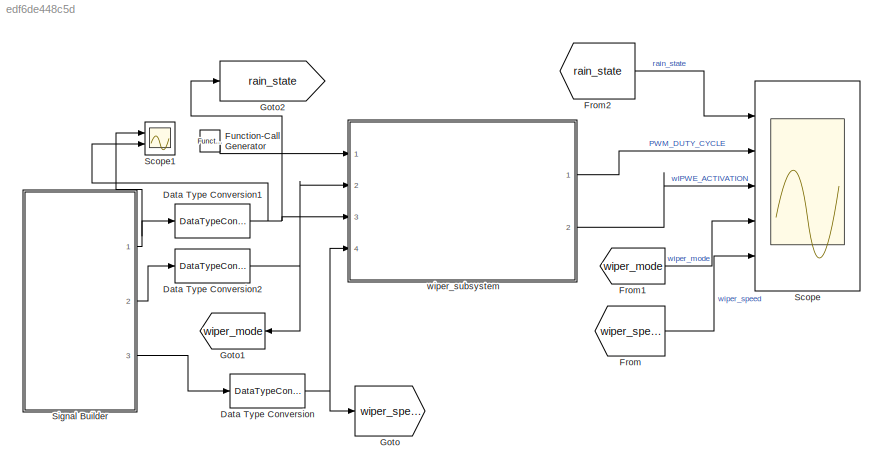
MODEL slx_edf6de448c5d
KIND model
CONFIG AbsTol = auto
CONFIG EnableMultiTasking = off
CONFIG FixedStep = 0.01
CONFIG MaxStep = auto
CONFIG MinStep = auto
CONFIG RelTol = 1e-3
CONFIG SampleTimeConstraint = Unconstrained
CONFIG SolverName = FixedStepDiscrete
CONFIG StartTime = 0.0
CONFIG StopTime = 20
BLOCK [DataTypeConversion] Data Type Conversion
  NameLocation = top
  RndMeth = Floor
  SaturateOnIntegerOverflow = off
BLOCK [DataTypeConversion] Data Type Conversion1
  RndMeth = Floor
  SaturateOnIntegerOverflow = off
BLOCK [DataTypeConversion] Data Type Conversion2
  RndMeth = Floor
  SaturateOnIntegerOverflow = off
BLOCK [From] From
  GotoTag = wiper_speed
BLOCK [From] From1
  GotoTag = wiper_mode
BLOCK [From] From2
  GotoTag = rain_state
BLOCK [Reference] Function-Call Generator  REF=simulink/Ports &
Subsystems/Function-Call
Generator
  Ports = [0, 1]
  SourceBlock = simulink/Ports &\nSubsystems/Function-Call\nGenerator
  SourceProductBaseCode = SL
  SourceType = Function-Call Generator
BLOCK [Goto] Goto
  GotoTag = wiper_speed
BLOCK [Goto] Goto1
  GotoTag = wiper_mode
  NameLocation = top
BLOCK [Goto] Goto2
  GotoTag = rain_state
BLOCK [Scope] Scope
  Floating = off
  NumInputPorts = 5
  Ports = [5]
  ScopeSpecificationString = Simulink.scopes.TimeScopeBlockCfg('CurrentConfiguration', extmgr.ConfigurationSet(extmgr.Configuration('Core','General UI',true),extmgr.Configuration('Core','Source UI',true),extmgr.Configuration('Sources','WiredSimulink',true),extmgr.Configuration('Visuals','Time Domain',true,'SerializedDisplays',{struct('MinYLimReal','-0.125','MaxYLimReal','1.125','YLabelReal','','MinYLimMag','0.00000','MaxYLimM...<+6185ch>
BLOCK [Scope] Scope1
  Floating = off
  NumInputPorts = 2
  Ports = [2]
  ScopeSpecificationString = Simulink.scopes.TimeScopeBlockCfg('CurrentConfiguration', extmgr.ConfigurationSet(extmgr.Configuration('Core','General UI',true),extmgr.Configuration('Core','Source UI',true),extmgr.Configuration('Sources','WiredSimulink',true,'DataLoggingVariableName','ScopeData1'),extmgr.Configuration('Visuals','Time Domain',true,'SerializedDisplays',{struct('MinYLimReal','-0.125','MaxYLimReal','1.125','YLabelRe...<+1441ch>
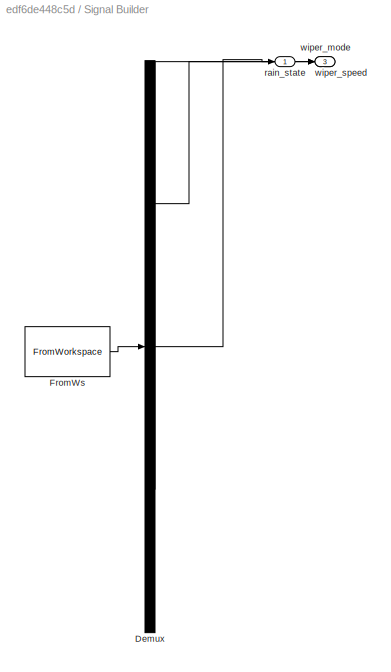
BLOCK [SubSystem] Signal Builder
  ClipboardFcn = sigbuilder_block('clipboard');
  CloseFcn = sigbuilder_block('close');
  ContinueFcn = sigbuilder_block('continue');
  CopyFcn = sigbuilder_block('copy');
  DeleteFcn = sigbuilder_block('delete');
  LoadFcn = sigbuilder_block('load',[5.4 30 1141.2 522.6 ]);
  MaskHideContents = on
  ModelCloseFcn = sigbuilder_block('modelClose');
  NameChangeFcn = sigbuilder_block('namechange');
  OpenFcn = sigbuilder_block('open',[5.4 30 1141.2 522.6 ]);
  PauseFcn = sigbuilder_block('pause');
  Ports = [0, 3]
  PreSaveFcn = sigbuilder_block('preSave');
  RequestExecContextInheritance = off
  StartFcn = sigbuilder_block('start');
  StopFcn = sigbuilder_block('stop');
  Tag = STV Subsys
BLOCK [Demux] Signal Builder/Demux
  DisplayOption = none
  Outputs = 3
  Ports = [1, 3]
  Tag = STV Demux
BLOCK [FromWorkspace] Signal Builder/FromWs
  Tag = STV FromWs
  VariableName = tuvar
BLOCK [Outport] Signal Builder/rain_state
  Tag = STV Outport
BLOCK [Outport] Signal Builder/wiper_mode
  Port = 2
  Tag = STV Outport
BLOCK [Outport] Signal Builder/wiper_speed
  Port = 3
  Tag = STV Outport
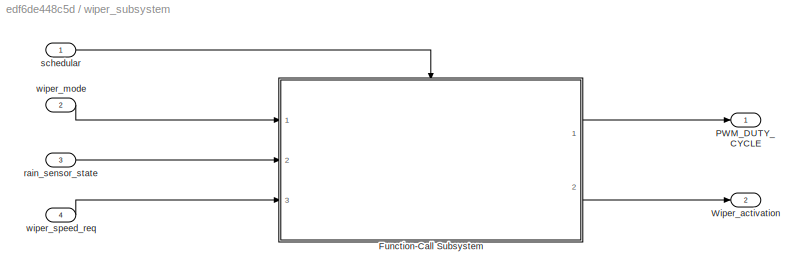
BLOCK [SubSystem] wiper_subsystem
  Ports = [4, 2]
  RequestExecContextInheritance = off
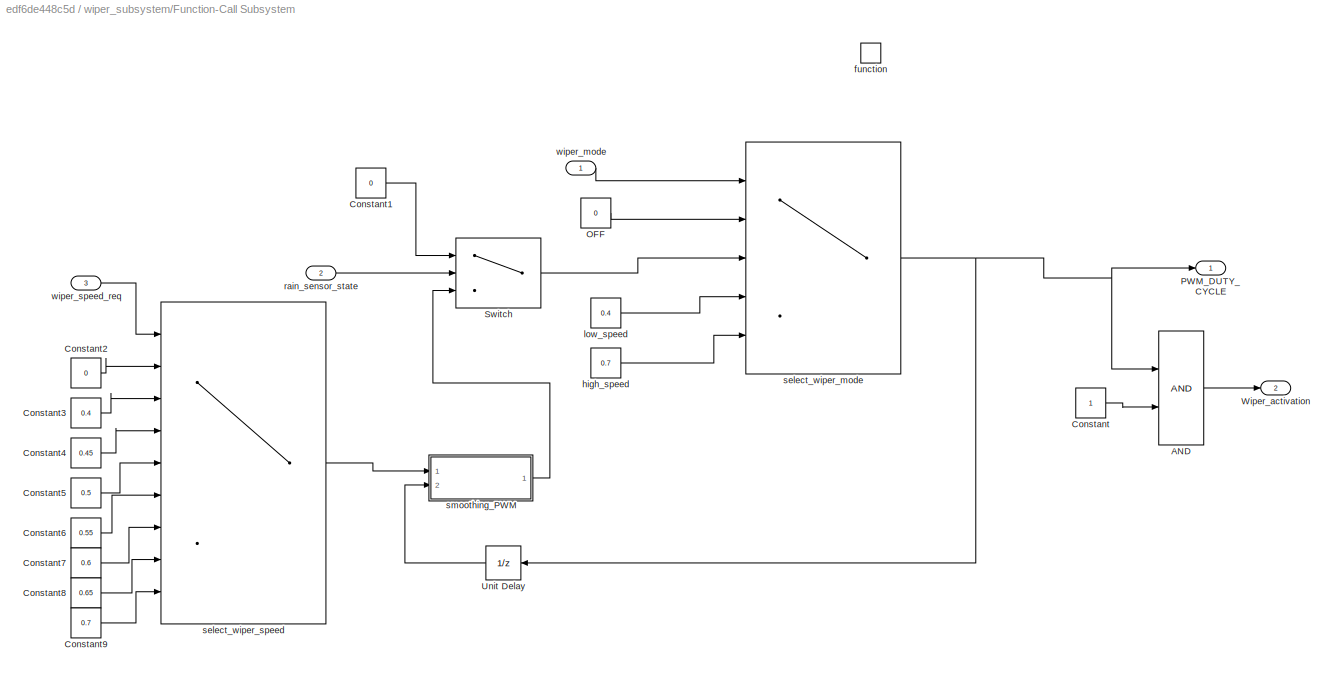
BLOCK [SubSystem] wiper_subsystem/Function-Call Subsystem
  Ports = [3, 2, 0, 1]
  RequestExecContextInheritance = off
  TreatAsAtomicUnit = on
BLOCK [Logic] wiper_subsystem/Function-Call Subsystem/AND
  AllPortsSameDT = off
  IconShape = distinctive
  OutDataTypeStr = boolean
  Ports = [2, 1]
BLOCK [Constant] wiper_subsystem/Function-Call Subsystem/Constant
BLOCK [Constant] wiper_subsystem/Function-Call Subsystem/Constant1
  Value = 0
BLOCK [Constant] wiper_subsystem/Function-Call Subsystem/Constant2
  Value = 0
BLOCK [Constant] wiper_subsystem/Function-Call Subsystem/Constant3
  Value = 0.4
BLOCK [Constant] wiper_subsystem/Function-Call Subsystem/Constant4
  Value = 0.45
BLOCK [Constant] wiper_subsystem/Function-Call Subsystem/Constant5
  Value = 0.5
BLOCK [Constant] wiper_subsystem/Function-Call Subsystem/Constant6
  Value = 0.55
BLOCK [Constant] wiper_subsystem/Function-Call Subsystem/Constant7
  Value = 0.6
BLOCK [Constant] wiper_subsystem/Function-Call Subsystem/Constant8
  Value = 0.65
BLOCK [Constant] wiper_subsystem/Function-Call Subsystem/Constant9
  Value = 0.7
BLOCK [Constant] wiper_subsystem/Function-Call Subsystem/OFF
  Value = 0
BLOCK [Outport] wiper_subsystem/Function-Call Subsystem/PWM_DUTY_CYCLE
BLOCK [Switch] wiper_subsystem/Function-Call Subsystem/Switch
  Criteria = u2 > Threshold
  InputSameDT = off
  SaturateOnIntegerOverflow = off
BLOCK [UnitDelay] wiper_subsystem/Function-Call Subsystem/Unit Delay
  HasFrameUpgradeWarning = on
  NameLocation = top
  SampleTime = -1
BLOCK [Outport] wiper_subsystem/Function-Call Subsystem/Wiper_activation
  Port = 2
BLOCK [TriggerPort] wiper_subsystem/Function-Call Subsystem/function
  Ports = []
  StatesWhenEnabling = held
  TriggerType = function-call
  VariantControl = (inherit)
BLOCK [Constant] wiper_subsystem/Function-Call Subsystem/high_speed
  Value = 0.7
BLOCK [Constant] wiper_subsystem/Function-Call Subsystem/low_speed
  Value = 0.4
BLOCK [Inport] wiper_subsystem/Function-Call Subsystem/rain_sensor_state
  OutDataTypeStr = boolean
  Port = 2
BLOCK [MultiPortSwitch] wiper_subsystem/Function-Call Subsystem/select_wiper_mode
  DataPortOrder = Zero-based contiguous
  InputSameDT = off
  Inputs = 4
  OutDataTypeStr = single
  Ports = [5, 1]
  SaturateOnIntegerOverflow = off
  zeroidx = on
BLOCK [MultiPortSwitch] wiper_subsystem/Function-Call Subsystem/select_wiper_speed
  DataPortOrder = Zero-based contiguous
  InputSameDT = off
  Inputs = 8
  OutDataTypeStr = single
  Ports = [9, 1]
  SaturateOnIntegerOverflow = off
  zeroidx = on
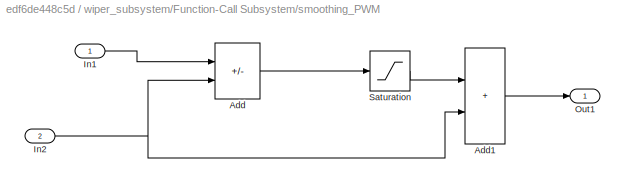
BLOCK [SubSystem] wiper_subsystem/Function-Call Subsystem/smoothing_PWM
  Ports = [2, 1]
  RequestExecContextInheritance = off
BLOCK [Sum] wiper_subsystem/Function-Call Subsystem/smoothing_PWM/Add
  IconShape = rectangular
  Inputs = +-
  Ports = [2, 1]
BLOCK [Sum] wiper_subsystem/Function-Call Subsystem/smoothing_PWM/Add1
  IconShape = rectangular
  Ports = [2, 1]
BLOCK [Inport] wiper_subsystem/Function-Call Subsystem/smoothing_PWM/In1
BLOCK [Inport] wiper_subsystem/Function-Call Subsystem/smoothing_PWM/In2
  Port = 2
BLOCK [Outport] wiper_subsystem/Function-Call Subsystem/smoothing_PWM/Out1
BLOCK [Saturate] wiper_subsystem/Function-Call Subsystem/smoothing_PWM/Saturation
  LowerLimit = -0.005
  UpperLimit = 0.005
BLOCK [Inport] wiper_subsystem/Function-Call Subsystem/wiper_mode
BLOCK [Inport] wiper_subsystem/Function-Call Subsystem/wiper_speed_req
  Port = 3
BLOCK [Outport] wiper_subsystem/PWM_DUTY_CYCLE
  OutDataTypeStr = single
BLOCK [Outport] wiper_subsystem/Wiper_activation
  OutDataTypeStr = boolean
  Port = 2
BLOCK [Inport] wiper_subsystem/rain_sensor_state
  OutDataTypeStr = boolean
  Port = 3
BLOCK [Inport] wiper_subsystem/schedular
BLOCK [Inport] wiper_subsystem/wiper_mode
  OutDataTypeStr = uint8
  Port = 2
BLOCK [Inport] wiper_subsystem/wiper_speed_req
  OutDataTypeStr = uint8
  Port = 4
NET Data Type Conversion1:1 -> Goto2:1, Scope1:2, wiper_subsystem:3
NET Data Type Conversion2:1 -> Goto1:1, wiper_subsystem:2
NET Data Type Conversion:1 -> Goto:1, wiper_subsystem:4
LINE From1:1 -> Scope:4
LINE From2:1 -> Scope:1
LINE From:1 -> Scope:5
LINE Function-Call Generator:1 -> wiper_subsystem:1
NET Signal Builder:1 -> Data Type Conversion1:1, Scope1:1
LINE Signal Builder:2 -> Data Type Conversion2:1
LINE Signal Builder:3 -> Data Type Conversion:1
LINE wiper_subsystem/Function-Call Subsystem/AND:1 -> wiper_subsystem/Function-Call Subsystem/Wiper_activation:1
LINE wiper_subsystem/Function-Call Subsystem/Constant1:1 -> wiper_subsystem/Function-Call Subsystem/Switch:1
LINE wiper_subsystem/Function-Call Subsystem/Constant2:1 -> wiper_subsystem/Function-Call Subsystem/select_wiper_speed:2
LINE wiper_subsystem/Function-Call Subsystem/Constant3:1 -> wiper_subsystem/Function-Call Subsystem/select_wiper_speed:3
LINE wiper_subsystem/Function-Call Subsystem/Constant4:1 -> wiper_subsystem/Function-Call Subsystem/select_wiper_speed:4
LINE wiper_subsystem/Function-Call Subsystem/Constant5:1 -> wiper_subsystem/Function-Call Subsystem/select_wiper_speed:5
LINE wiper_subsystem/Function-Call Subsystem/Constant6:1 -> wiper_subsystem/Function-Call Subsystem/select_wiper_speed:6
LINE wiper_subsystem/Function-Call Subsystem/Constant7:1 -> wiper_subsystem/Function-Call Subsystem/select_wiper_speed:7
LINE wiper_subsystem/Function-Call Subsystem/Constant8:1 -> wiper_subsystem/Function-Call Subsystem/select_wiper_speed:8
LINE wiper_subsystem/Function-Call Subsystem/Constant9:1 -> wiper_subsystem/Function-Call Subsystem/select_wiper_speed:9
LINE wiper_subsystem/Function-Call Subsystem/Constant:1 -> wiper_subsystem/Function-Call Subsystem/AND:2
LINE wiper_subsystem/Function-Call Subsystem/OFF:1 -> wiper_subsystem/Function-Call Subsystem/select_wiper_mode:2
LINE wiper_subsystem/Function-Call Subsystem/Switch:1 -> wiper_subsystem/Function-Call Subsystem/select_wiper_mode:3
LINE wiper_subsystem/Function-Call Subsystem/Unit Delay:1 -> wiper_subsystem/Function-Call Subsystem/smoothing_PWM:2
LINE wiper_subsystem/Function-Call Subsystem/high_speed:1 -> wiper_subsystem/Function-Call Subsystem/select_wiper_mode:5
LINE wiper_subsystem/Function-Call Subsystem/low_speed:1 -> wiper_subsystem/Function-Call Subsystem/select_wiper_mode:4
LINE wiper_subsystem/Function-Call Subsystem/rain_sensor_state:1 -> wiper_subsystem/Function-Call Subsystem/Switch:2
NET wiper_subsystem/Function-Call Subsystem/select_wiper_mode:1 -> wiper_subsystem/Function-Call Subsystem/AND:1, wiper_subsystem/Function-Call Subsystem/PWM_DUTY_CYCLE:1, wiper_subsystem/Function-Call Subsystem/Unit Delay:1
LINE wiper_subsystem/Function-Call Subsystem/select_wiper_speed:1 -> wiper_subsystem/Function-Call Subsystem/smoothing_PWM:1
LINE wiper_subsystem/Function-Call Subsystem/smoothing_PWM/Add1:1 -> wiper_subsystem/Function-Call Subsystem/smoothing_PWM/Out1:1
LINE wiper_subsystem/Function-Call Subsystem/smoothing_PWM/Add:1 -> wiper_subsystem/Function-Call Subsystem/smoothing_PWM/Saturation:1
LINE wiper_subsystem/Function-Call Subsystem/smoothing_PWM/In1:1 -> wiper_subsystem/Function-Call Subsystem/smoothing_PWM/Add:1
NET wiper_subsystem/Function-Call Subsystem/smoothing_PWM/In2:1 -> wiper_subsystem/Function-Call Subsystem/smoothing_PWM/Add1:2, wiper_subsystem/Function-Call Subsystem/smoothing_PWM/Add:2
LINE wiper_subsystem/Function-Call Subsystem/smoothing_PWM/Saturation:1 -> wiper_subsystem/Function-Call Subsystem/smoothing_PWM/Add1:1
LINE wiper_subsystem/Function-Call Subsystem/smoothing_PWM:1 -> wiper_subsystem/Function-Call Subsystem/Switch:3
LINE wiper_subsystem/Function-Call Subsystem/wiper_mode:1 -> wiper_subsystem/Function-Call Subsystem/select_wiper_mode:1
LINE wiper_subsystem/Function-Call Subsystem/wiper_speed_req:1 -> wiper_subsystem/Function-Call Subsystem/select_wiper_speed:1
LINE wiper_subsystem/Function-Call Subsystem:1 -> wiper_subsystem/PWM_DUTY_CYCLE:1
LINE wiper_subsystem/Function-Call Subsystem:2 -> wiper_subsystem/Wiper_activation:1
LINE wiper_subsystem/rain_sensor_state:1 -> wiper_subsystem/Function-Call Subsystem:2
LINE wiper_subsystem/schedular:1 -> wiper_subsystem/Function-Call Subsystem:trigger
LINE wiper_subsystem/wiper_mode:1 -> wiper_subsystem/Function-Call Subsystem:1
LINE wiper_subsystem/wiper_speed_req:1 -> wiper_subsystem/Function-Call Subsystem:3
LINE wiper_subsystem:1 -> Scope:2
LINE wiper_subsystem:2 -> Scope:3
note: NET lines group one-source signal fan-out (src -> all destinations, sorted); 1:1 wires keep LINE
